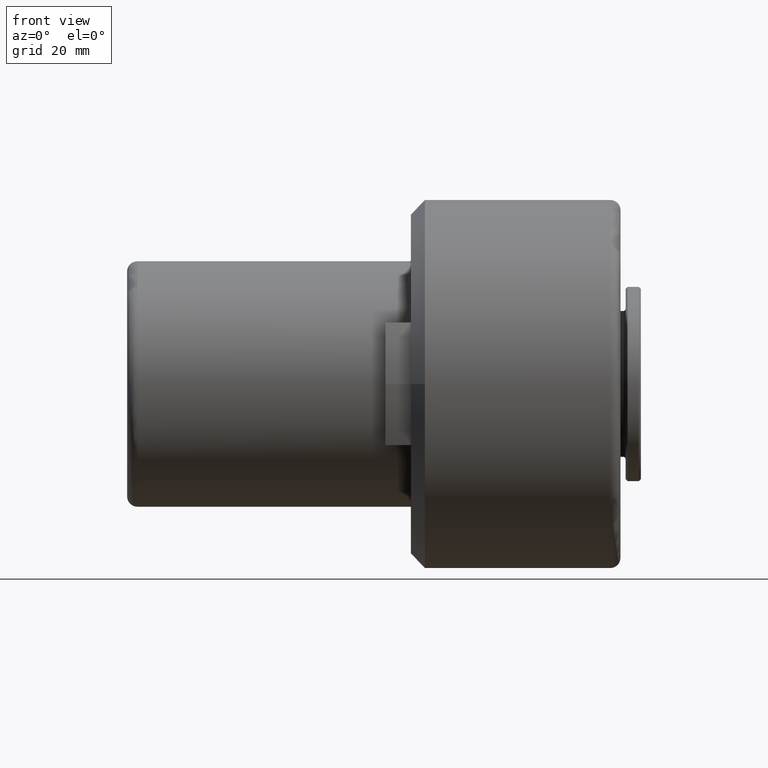
[diagram: clean part render]
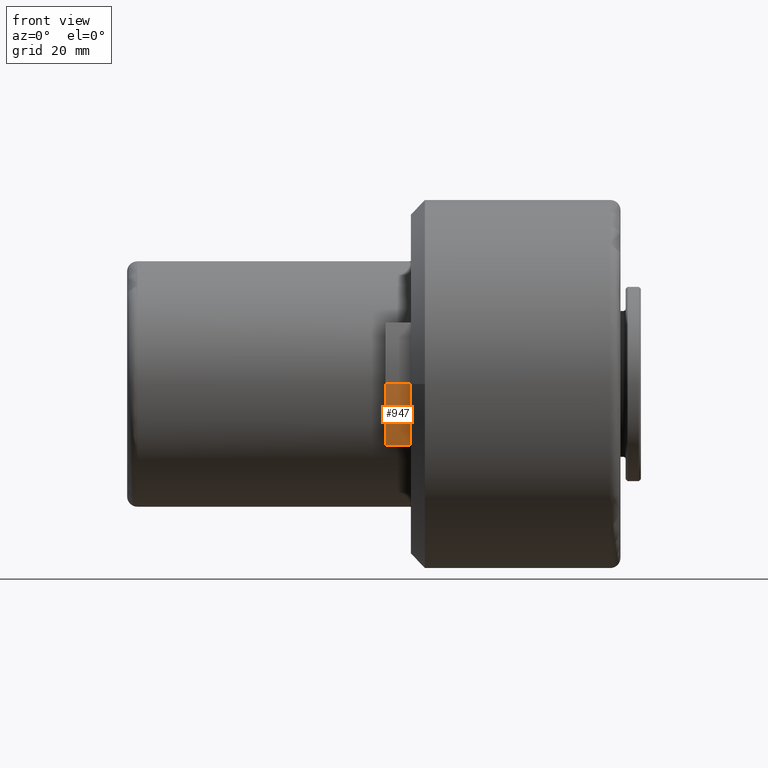
[diagram: same view with one face highlighted and labeled with its STEP entity id]
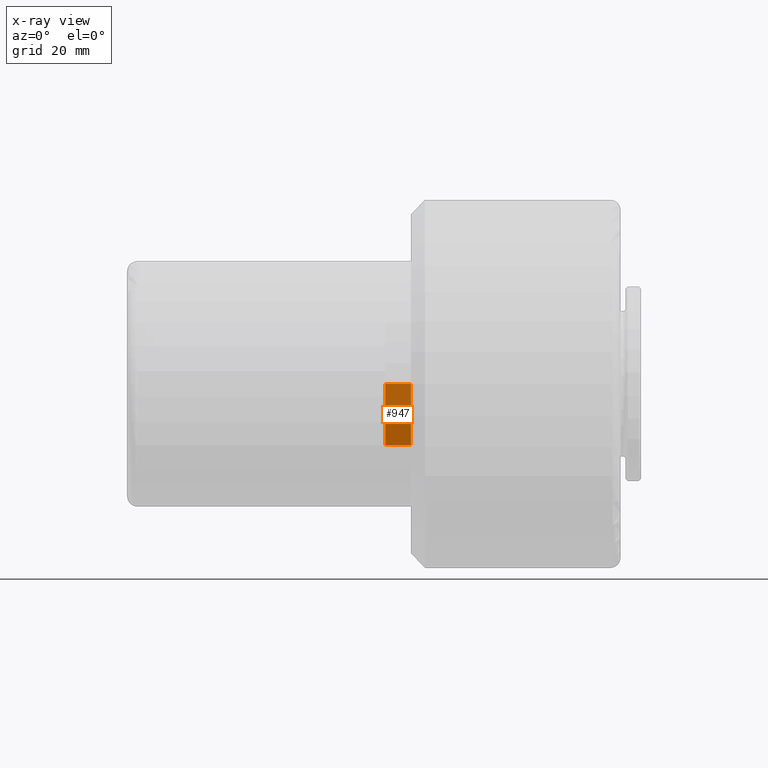
[diagram: x-ray of the same camera — body ghosted, the highlighted face saturated]
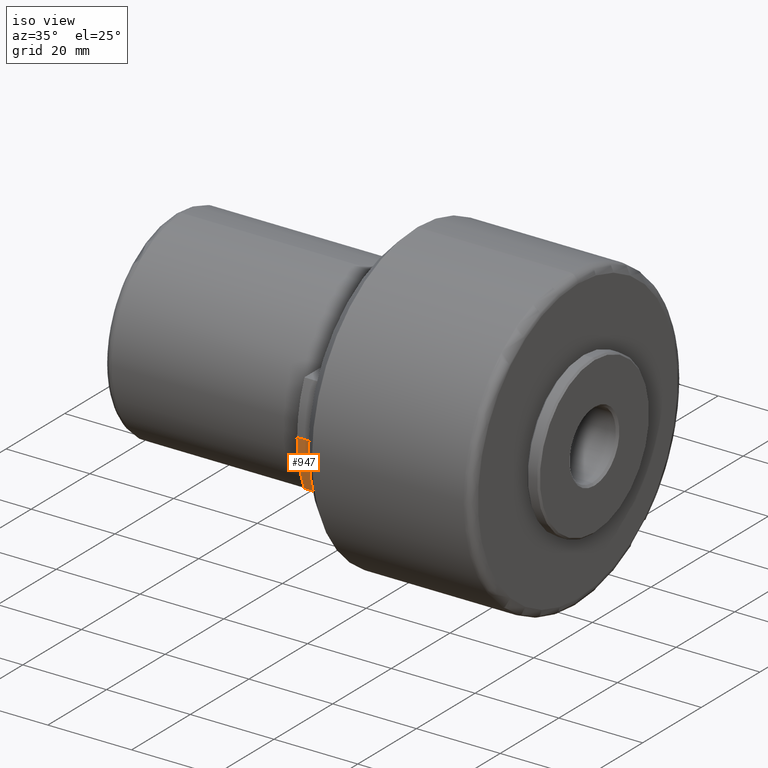
[diagram: same view with one face highlighted and labeled with its STEP entity id]
A machine part, front view. The second image highlights one B-rep face of the part: STEP entity #947.
The next image is the same camera in x-ray: the body ghosted, the highlighted face saturated — about 0% of this face is hidden behind the body in this view.
A second angle (iso view) of the same face is appended — the face is thin or edge-on in the first view.
In plain terms, the highlighted cylindrical surface (partial cylindrical patch) has radius 30 mm, axis along (-1, -0, -0).
Its self-contained STEP definition (entity closure, byte-faithful):
#21 = VERTEX_POINT ( 'NONE', #1288 ) ;
#33 = CARTESIAN_POINT ( 'NONE',  ( 55.50000000000000000, -3.677383230559753800E-031, 0.0000000000000000000 ) ) ;
#60 = EDGE_CURVE ( 'NONE', #322, #304, #635, .T. ) ;
#88 = DIRECTION ( 'NONE',  ( -1.000000000000000000, -1.156482317317871700E-016, -0.0000000000000000000 ) ) ;
#147 = DIRECTION ( 'NONE',  ( 1.000000000000000000, 0.0000000000000000000, 0.0000000000000000000 ) ) ;
#148 = CARTESIAN_POINT ( 'NONE',  ( 50.50000000000000700, -30.00000000000000000, 0.0000000000000000000 ) ) ;
#188 = VECTOR ( 'NONE', #147, 1000.000000000000000 ) ;
#232 = CARTESIAN_POINT ( 'NONE',  ( 50.50000000000000000, -5.782411586589359600E-016, 0.0000000000000000000 ) ) ;
#267 = DIRECTION ( 'NONE',  ( -1.000000000000000000, -1.156482317317871700E-016, -0.0000000000000000000 ) ) ;
#298 = AXIS2_PLACEMENT_3D ( 'NONE', #232, #558, #578 ) ;
#304 = VERTEX_POINT ( 'NONE', #620 ) ;
#322 = VERTEX_POINT ( 'NONE', #148 ) ;
#324 = CARTESIAN_POINT ( 'NONE',  ( 55.50000000000000000, 0.0000000000000000000, 0.0000000000000000000 ) ) ;
#326 = EDGE_CURVE ( 'NONE', #608, #21, #790, .T. ) ;
#331 = ORIENTED_EDGE ( 'NONE', *, *, #326, .T. ) ;
#482 = AXIS2_PLACEMENT_3D ( 'NONE', #33, #267, #673 ) ;
#538 = CARTESIAN_POINT ( 'NONE',  ( 55.50000000000000700, -30.00000000000000000, 0.0000000000000000000 ) ) ;
#558 = DIRECTION ( 'NONE',  ( 1.000000000000000000, 1.156482317317871700E-016, 0.0000000000000000000 ) ) ;
#578 = DIRECTION ( 'NONE',  ( 2.312964634635743000E-016, -1.000000000000000000, 0.0000000000000000000 ) ) ;
#608 = VERTEX_POINT ( 'NONE', #781 ) ;
#620 = CARTESIAN_POINT ( 'NONE',  ( 50.50000000000000000, -27.49545416980128100, -12.00000000000000000 ) ) ;
#635 = CIRCLE ( 'NONE', #298, 30.00000000000000000 ) ;
#644 = DIRECTION ( 'NONE',  ( 2.312964634635743000E-016, -1.000000000000000000, 0.0000000000000000000 ) ) ;
#653 = EDGE_CURVE ( 'NONE', #21, #322, #1012, .T. ) ;
#673 = DIRECTION ( 'NONE',  ( 2.312964634635743000E-016, -1.000000000000000000, 0.0000000000000000000 ) ) ;
#681 = ORIENTED_EDGE ( 'NONE', *, *, #1223, .T. ) ;
#779 = ORIENTED_EDGE ( 'NONE', *, *, #653, .T. ) ;
#781 = CARTESIAN_POINT ( 'NONE',  ( 55.50000000000000700, -27.49545417167629000, -11.99999999570380800 ) ) ;
#790 = CIRCLE ( 'NONE', #482, 30.00000000000000000 ) ;
#942 = VECTOR ( 'NONE', #1024, 1000.000000000000000 ) ;
#947 = ADVANCED_FACE ( 'NONE', ( #1008 ), #974, .T. ) ;
#974 = CYLINDRICAL_SURFACE ( 'NONE', #1005, 30.00000000000000000 ) ;
#988 = CARTESIAN_POINT ( 'NONE',  ( 50.50000000000000000, -27.49545416986751800, -12.00000000000000000 ) ) ;
#1005 = AXIS2_PLACEMENT_3D ( 'NONE', #324, #88, #644 ) ;
#1008 = FACE_OUTER_BOUND ( 'NONE', #1255, .T. ) ;
#1012 = LINE ( 'NONE', #538, #942 ) ;
#1023 = ORIENTED_EDGE ( 'NONE', *, *, #60, .T. ) ;
#1024 = DIRECTION ( 'NONE',  ( -1.000000000000000000, -1.156482317317871700E-016, -0.0000000000000000000 ) ) ;
#1223 = EDGE_CURVE ( 'NONE', #304, #608, #1247, .T. ) ;
#1247 = LINE ( 'NONE', #988, #188 ) ;
#1255 = EDGE_LOOP ( 'NONE', ( #331, #779, #1023, #681 ) ) ;
#1288 = CARTESIAN_POINT ( 'NONE',  ( 55.50000000000000700, -30.00000000000000000, 0.0000000000000000000 ) ) ;